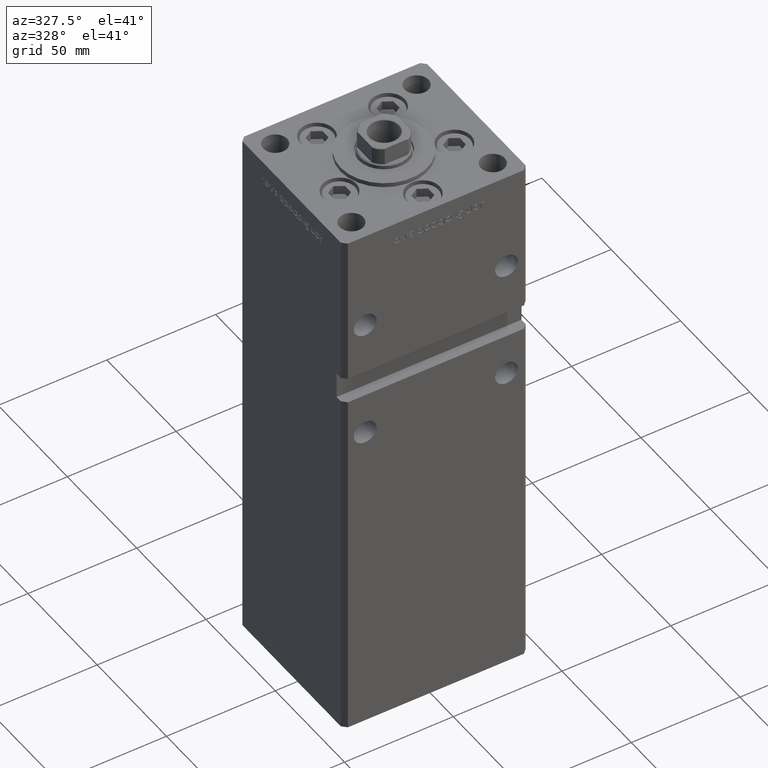
[diagram: clean part render]
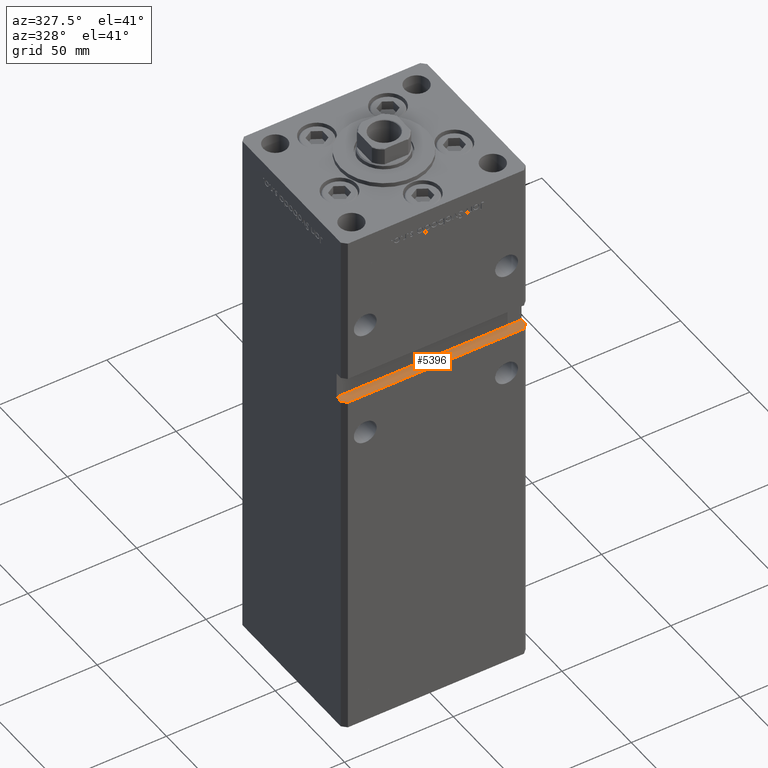
[diagram: same view with one face highlighted and labeled with its STEP entity id]
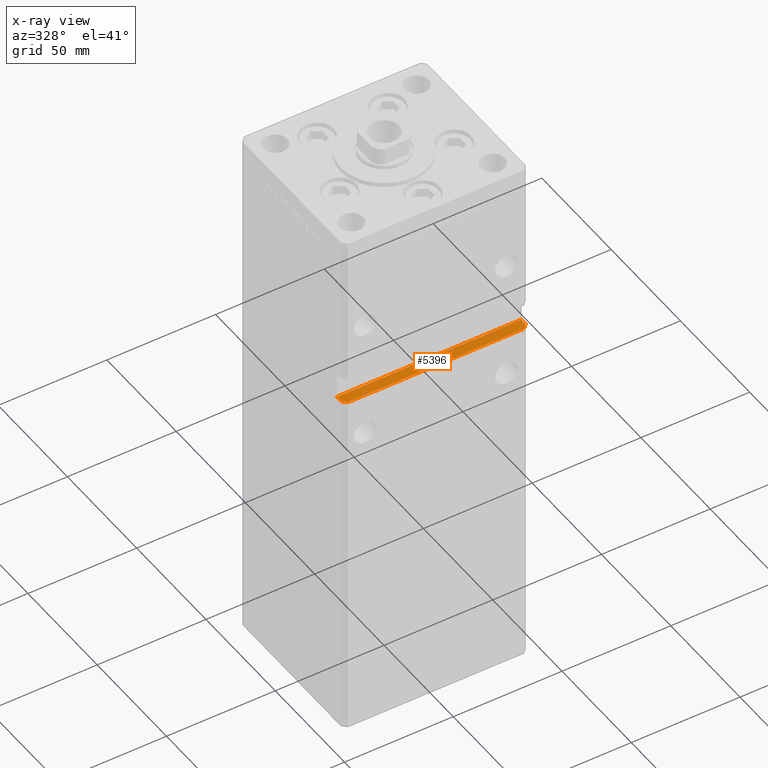
[diagram: x-ray of the same camera — body ghosted, the highlighted face saturated]
A machine part, auxiliary view. The second image highlights one B-rep face of the part: STEP entity #5396.
The next image is the same camera in x-ray: the body ghosted, the highlighted face saturated — about 0% of this face is hidden behind the body in this view.
In plain terms, the highlighted planar face has unit normal (0, 0, -1).
Its self-contained STEP definition (entity closure, byte-faithful):
#4835 = CARTESIAN_POINT ( 'NONE',  ( 42.49999999999998579, -35.50000000000000711, 152.0000000000000284 ) ) ;
#5146 = CARTESIAN_POINT ( 'NONE',  ( -42.49999999999998579, -35.49999999999996447, 152.0000000000000284 ) ) ;
#5396 = ADVANCED_FACE ( 'NONE', ( #21834 ), #50559, .F. ) ;
#10152 = CARTESIAN_POINT ( 'NONE',  ( -42.49999999999998579, -32.50000000000000711, 152.0000000000000284 ) ) ;
#10215 = CARTESIAN_POINT ( 'NONE',  ( -40.49999999999998579, -37.50000000000000711, 152.0000000000000284 ) ) ;
#12000 = EDGE_CURVE ( 'NONE', #43853, #19179, #32236, .T. ) ;
#12914 = EDGE_CURVE ( 'NONE', #20645, #48579, #28739, .T. ) ;
#13524 = VERTEX_POINT ( 'NONE', #42486 ) ;
#13769 = CARTESIAN_POINT ( 'NONE',  ( -42.49999999999998579, -32.50000000000000711, 152.0000000000000284 ) ) ;
#16454 = DIRECTION ( 'NONE',  ( -0.000000000000000000, -1.000000000000000000, -0.000000000000000000 ) ) ;
#16753 = ORIENTED_EDGE ( 'NONE', *, *, #42150, .T. ) ;
#16979 = EDGE_CURVE ( 'NONE', #43853, #48579, #42924, .T. ) ;
#17426 = LINE ( 'NONE', #4835, #31356 ) ;
#17427 = DIRECTION ( 'NONE',  ( -0.7071067811865474617, 0.7071067811865474617, 0.000000000000000000 ) ) ;
#17849 = CARTESIAN_POINT ( 'NONE',  ( 42.49999999999998579, -32.50000000000000000, 152.0000000000000284 ) ) ;
#18557 = VECTOR ( 'NONE', #31972, 1000.000000000000000 ) ;
#18669 = CARTESIAN_POINT ( 'NONE',  ( 42.49999999999998579, -35.50000000000000711, 152.0000000000000284 ) ) ;
#19179 = VERTEX_POINT ( 'NONE', #17849 ) ;
#20331 = VECTOR ( 'NONE', #17427, 1000.000000000000114 ) ;
#20645 = VERTEX_POINT ( 'NONE', #10215 ) ;
#20758 = CARTESIAN_POINT ( 'NONE',  ( 42.49999999999998579, -32.50000000000000711, 152.0000000000000284 ) ) ;
#21241 = EDGE_CURVE ( 'NONE', #20645, #13524, #50836, .T. ) ;
#21834 = FACE_OUTER_BOUND ( 'NONE', #31933, .T. ) ;
#22105 = CARTESIAN_POINT ( 'NONE',  ( -42.49999999999998579, -37.50000000000000711, 152.0000000000000284 ) ) ;
#22497 = DIRECTION ( 'NONE',  ( -0.000000000000000000, -1.000000000000000000, -0.000000000000000000 ) ) ;
#22567 = VERTEX_POINT ( 'NONE', #18669 ) ;
#25975 = ORIENTED_EDGE ( 'NONE', *, *, #12000, .F. ) ;
#28739 = LINE ( 'NONE', #45134, #20331 ) ;
#30161 = DIRECTION ( 'NONE',  ( 0.000000000000000000, 0.000000000000000000, -1.000000000000000000 ) ) ;
#31356 = VECTOR ( 'NONE', #50203, 1000.000000000000114 ) ;
#31933 = EDGE_LOOP ( 'NONE', ( #50939, #16753, #35285, #25975, #44433, #43317 ) ) ;
#31972 = DIRECTION ( 'NONE',  ( 1.000000000000000000, 0.000000000000000000, 0.000000000000000000 ) ) ;
#32236 = LINE ( 'NONE', #48609, #18557 ) ;
#34067 = CARTESIAN_POINT ( 'NONE',  ( -42.49999999999998579, -32.50000000000000711, 152.0000000000000284 ) ) ;
#35285 = ORIENTED_EDGE ( 'NONE', *, *, #45197, .F. ) ;
#37623 = VECTOR ( 'NONE', #22497, 1000.000000000000000 ) ;
#38884 = VECTOR ( 'NONE', #16454, 1000.000000000000000 ) ;
#40389 = AXIS2_PLACEMENT_3D ( 'NONE', #13769, #30161, #46539 ) ;
#42150 = EDGE_CURVE ( 'NONE', #13524, #22567, #17426, .T. ) ;
#42486 = CARTESIAN_POINT ( 'NONE',  ( 40.49999999999998579, -37.50000000000000711, 152.0000000000000284 ) ) ;
#42924 = LINE ( 'NONE', #34067, #37623 ) ;
#43064 = DIRECTION ( 'NONE',  ( 1.000000000000000000, 0.000000000000000000, 0.000000000000000000 ) ) ;
#43317 = ORIENTED_EDGE ( 'NONE', *, *, #12914, .F. ) ;
#43853 = VERTEX_POINT ( 'NONE', #10152 ) ;
#44433 = ORIENTED_EDGE ( 'NONE', *, *, #16979, .T. ) ;
#45134 = CARTESIAN_POINT ( 'NONE',  ( -42.49999999999998579, -35.50000000000000711, 152.0000000000000284 ) ) ;
#45197 = EDGE_CURVE ( 'NONE', #19179, #22567, #45469, .T. ) ;
#45469 = LINE ( 'NONE', #20758, #38884 ) ;
#46539 = DIRECTION ( 'NONE',  ( -1.000000000000000000, 0.000000000000000000, -0.000000000000000000 ) ) ;
#48014 = VECTOR ( 'NONE', #43064, 1000.000000000000000 ) ;
#48579 = VERTEX_POINT ( 'NONE', #5146 ) ;
#48609 = CARTESIAN_POINT ( 'NONE',  ( -42.49999999999998579, -32.50000000000000711, 152.0000000000000284 ) ) ;
#50203 = DIRECTION ( 'NONE',  ( 0.7071067811865474617, 0.7071067811865474617, 0.000000000000000000 ) ) ;
#50559 = PLANE ( 'NONE',  #40389 ) ;
#50836 = LINE ( 'NONE', #22105, #48014 ) ;
#50939 = ORIENTED_EDGE ( 'NONE', *, *, #21241, .T. ) ;